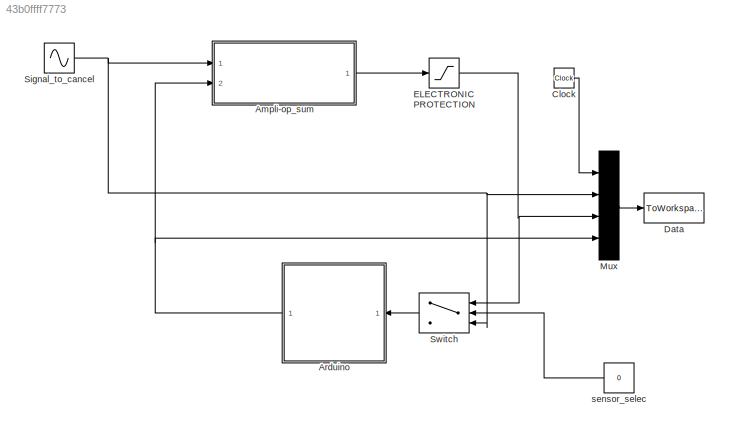
MODEL slx_43b0ffff7773
KIND model
CONFIG AbsTol = auto
CONFIG FixedStep = 0.01
CONFIG MaxStep = auto
CONFIG MinStep = auto
CONFIG RelTol = 1e-3
CONFIG SampleTimeConstraint = Unconstrained
CONFIG Solver = ode3
CONFIG SolverMode = Auto
CONFIG SolverName = ode3
CONFIG StartTime = 0.0
CONFIG StopTime = 10
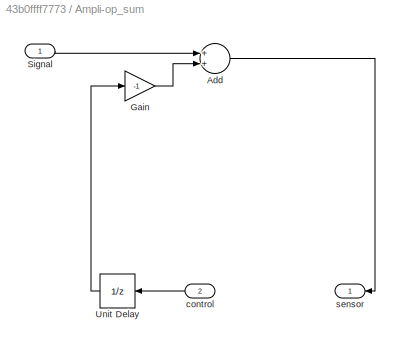
BLOCK [SubSystem] Ampli-op_sum
  Ports = [2, 1]
  RequestExecContextInheritance = off
BLOCK [Sum] Ampli-op_sum/Add
  InputSameDT = off
  OutDataTypeStr = Inherit: Inherit via internal rule
  Ports = [2, 1]
  SaturateOnIntegerOverflow = off
BLOCK [Gain] Ampli-op_sum/Gain
  Gain = -1
  OutDataTypeStr = Inherit: Inherit via internal rule
  ParamDataTypeStr = Inherit: Inherit via internal rule
  SaturateOnIntegerOverflow = off
BLOCK [Inport] Ampli-op_sum/Signal
  IconDisplay = Port number
BLOCK [UnitDelay] Ampli-op_sum/Unit Delay
  InputProcessing = Elements as channels (sample based)
  SampleTime = -1
BLOCK [Inport] Ampli-op_sum/control
  IconDisplay = Port number
  Port = 2
BLOCK [Outport] Ampli-op_sum/sensor
  IconDisplay = Port number
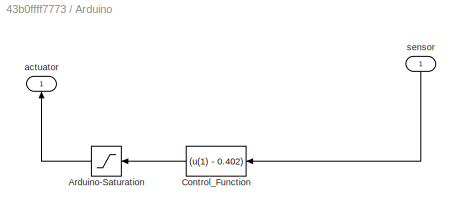
BLOCK [SubSystem] Arduino
  Ports = [1, 1]
  RequestExecContextInheritance = off
BLOCK [Saturate] Arduino/Arduino-Saturation
  InputPortMap = u0
  LowerLimit = 0
  Ports = [1, 1]
  UpperLimit = 3.3
BLOCK [Fcn] Arduino/Control_Function
  Expr = (u(1) - 0.402)
BLOCK [Outport] Arduino/actuator
  IconDisplay = Port number
BLOCK [Inport] Arduino/sensor
  IconDisplay = Port number
BLOCK [Clock] Clock
BLOCK [ToWorkspace] Data
  FixptAsFi = on
  MaxDataPoints = inf
  Ports = [1]
  SampleTime = -1
  Save2DSignal = 3-D array (concatenate along third dimension)
  VariableName = data
BLOCK [Saturate] ELECTRONIC PROTECTION
  InputPortMap = u0
  LowerLimit = 0
  Ports = [1, 1]
  UpperLimit = 3.3
BLOCK [Mux] Mux
  DisplayOption = bar
  Ports = [4, 1]
BLOCK [Sin] Signal_to_cancel
  Bias = 1.15
  Frequency = 6.2832
  Ports = [0, 1]
  SampleTime = 0.01
BLOCK [Switch] Switch
  Criteria = u2 > Threshold
  InputSameDT = off
  SaturateOnIntegerOverflow = off
BLOCK [Constant] sensor_selec
  Value = 0
LINE Ampli-op_sum/Add:1 -> Ampli-op_sum/sensor:1
LINE Ampli-op_sum/Gain:1 -> Ampli-op_sum/Add:2
LINE Ampli-op_sum/Signal:1 -> Ampli-op_sum/Add:1
LINE Ampli-op_sum/Unit Delay:1 -> Ampli-op_sum/Gain:1
LINE Ampli-op_sum/control:1 -> Ampli-op_sum/Unit Delay:1
LINE Ampli-op_sum:1 -> ELECTRONIC PROTECTION:1
LINE Arduino/Arduino-Saturation:1 -> Arduino/actuator:1
LINE Arduino/Control_Function:1 -> Arduino/Arduino-Saturation:1
LINE Arduino/sensor:1 -> Arduino/Control_Function:1
NET Arduino:1 -> Ampli-op_sum:2, Mux:4
LINE Clock:1 -> Mux:1
NET ELECTRONIC PROTECTION:1 -> Mux:3, Switch:1
LINE Mux:1 -> Data:1
NET Signal_to_cancel:1 -> Ampli-op_sum:1, Mux:2, Switch:3
LINE Switch:1 -> Arduino:1
LINE sensor_selec:1 -> Switch:2
note: NET lines group one-source signal fan-out (src -> all destinations, sorted); 1:1 wires keep LINE
